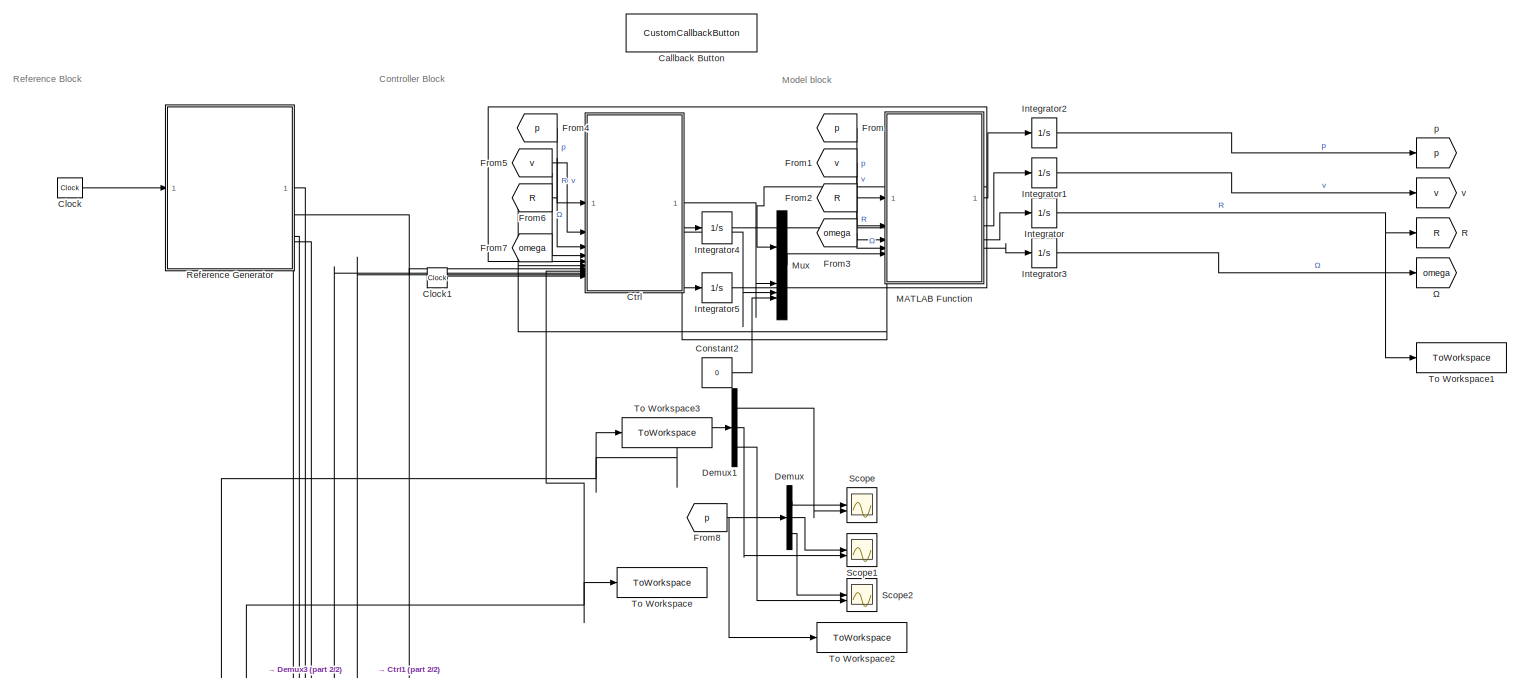
[diagram: root canvas - part 1/2, full width, top band]
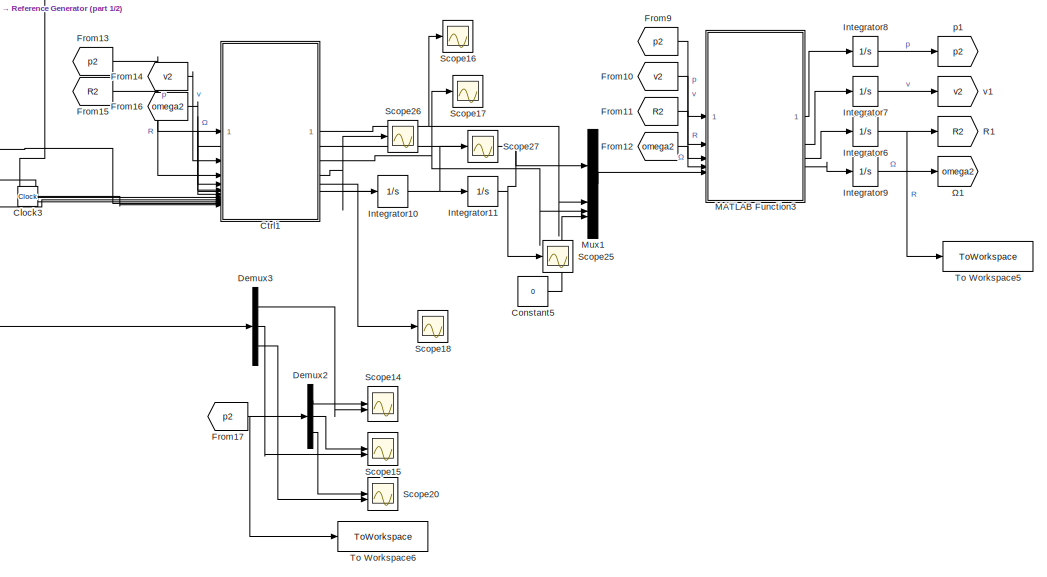
[diagram: root canvas - part 2/2, bottom center region]
MODEL slx_697af45009bc
KIND model
CONFIG AbsTol = auto
CONFIG EnableMultiTasking = on
CONFIG FixedStep = 0.001
CONFIG MaxStep = auto
CONFIG MinStep = auto
CONFIG RelTol = 1e-3
CONFIG SampleTimeConstraint = Unconstrained
CONFIG SolverName = VariableStepAuto
CONFIG StartTime = 0.0
CONFIG StopTime = 40
BLOCK [CustomCallbackButton] Callback Button
  Configuration = {"components":[{"name":"BackgroundImageComponent","settings":{"image":{"size":[0,0],"src":"default","srcOrientation":"Right"},"position":[0,0,1,1]}},{"name":"ButtonStateComponent","settings":{"buttonType":"momentary","clickFcn":"p0 = [10 0 0]';\nv0 = [-0.5 4.5 1]';\nR0 = eye(3);\n\nomega_0 = [0 0 0]';","onValue":1,"position":[0,0,1,1],"pressDelay":"500","pressFcn":"","repeatInterval":"0","states":...<+2132ch>
  CustomBackgroundColor = {"color":[0.9568627450980393,0.9568627450980393,0.9568627450980393],"show":true}
BLOCK [Clock] Clock
BLOCK [Clock] Clock1
BLOCK [Clock] Clock3
BLOCK [Constant] Constant2
  Value = 0
BLOCK [Constant] Constant5
  Value = 0
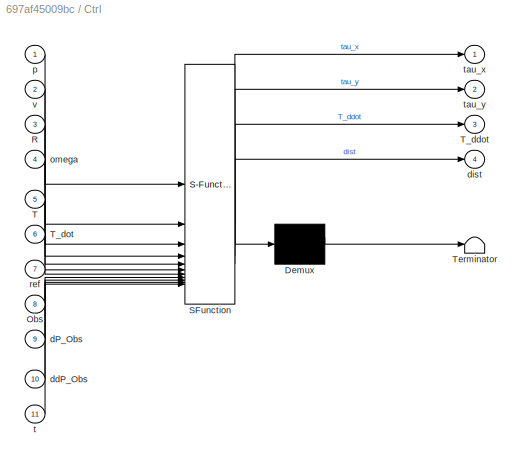
BLOCK [SubSystem] Ctrl
  ErrorFcn = Stateflow.Translate.translate
  PermitHierarchicalResolution = ExplicitOnly
  SFBlockType = MATLAB Function
  TreatAsAtomicUnit = on
BLOCK [Demux] Ctrl/ Demux 
  Outputs = 1
BLOCK [S-Function] Ctrl/ SFunction 
  EnableBusSupport = on
  FunctionName = sf_sfun
  PortCounts = [11 5]
  SFcnIsStateOwnerBlock = off
  SFunctionDeploymentMode = off
  Tag = Stateflow S-Function 3
BLOCK [Terminator] Ctrl/ Terminator 
BLOCK [Inport] Ctrl/Obs
  Port = 8
BLOCK [Inport] Ctrl/R
  Port = 3
BLOCK [Inport] Ctrl/T
  Port = 5
BLOCK [Outport] Ctrl/T_ddot
  Port = 3
BLOCK [Inport] Ctrl/T_dot
  Port = 6
BLOCK [Inport] Ctrl/dP_Obs
  Port = 9
BLOCK [Inport] Ctrl/ddP_Obs
  Port = 10
BLOCK [Outport] Ctrl/dist
  Port = 4
BLOCK [Inport] Ctrl/omega
  Port = 4
BLOCK [Inport] Ctrl/p
BLOCK [Inport] Ctrl/ref
  Port = 7
BLOCK [Inport] Ctrl/t
  Port = 11
BLOCK [Outport] Ctrl/tau_x
BLOCK [Outport] Ctrl/tau_y
  Port = 2
BLOCK [Inport] Ctrl/v
  Port = 2
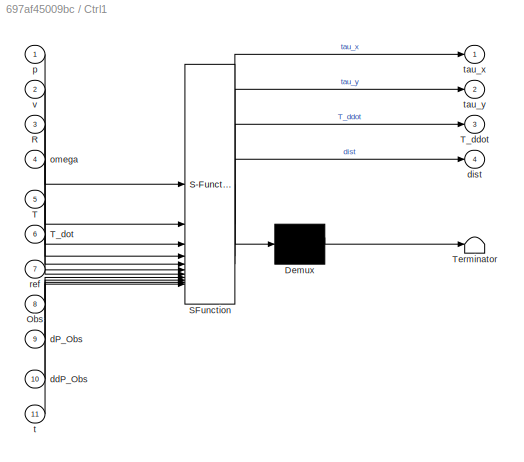
BLOCK [SubSystem] Ctrl1
  ErrorFcn = Stateflow.Translate.translate
  PermitHierarchicalResolution = ExplicitOnly
  SFBlockType = MATLAB Function
  TreatAsAtomicUnit = on
BLOCK [Demux] Ctrl1/ Demux 
  Outputs = 1
BLOCK [S-Function] Ctrl1/ SFunction 
  EnableBusSupport = on
  FunctionName = sf_sfun
  PortCounts = [11 5]
  SFcnIsStateOwnerBlock = off
  SFunctionDeploymentMode = off
  Tag = Stateflow S-Function 6
BLOCK [Terminator] Ctrl1/ Terminator 
BLOCK [Inport] Ctrl1/Obs
  Port = 8
BLOCK [Inport] Ctrl1/R
  Port = 3
BLOCK [Inport] Ctrl1/T
  Port = 5
BLOCK [Outport] Ctrl1/T_ddot
  Port = 3
BLOCK [Inport] Ctrl1/T_dot
  Port = 6
BLOCK [Inport] Ctrl1/dP_Obs
  Port = 9
BLOCK [Inport] Ctrl1/ddP_Obs
  Port = 10
BLOCK [Outport] Ctrl1/dist
  Port = 4
BLOCK [Inport] Ctrl1/omega
  Port = 4
BLOCK [Inport] Ctrl1/p
BLOCK [Inport] Ctrl1/ref
  Port = 7
BLOCK [Inport] Ctrl1/t
  Port = 11
BLOCK [Outport] Ctrl1/tau_x
BLOCK [Outport] Ctrl1/tau_y
  Port = 2
BLOCK [Inport] Ctrl1/v
  Port = 2
BLOCK [Demux] Demux
  Outputs = 3
BLOCK [Demux] Demux1
  Outputs = 3
BLOCK [Demux] Demux2
  Outputs = 3
BLOCK [Demux] Demux3
  Outputs = 3
BLOCK [From] From
  GotoTag = p
  TagVisibility = global
BLOCK [From] From1
  GotoTag = v
  TagVisibility = global
BLOCK [From] From10
  GotoTag = v2
  TagVisibility = global
BLOCK [From] From11
  GotoTag = R2
  TagVisibility = global
BLOCK [From] From12
  GotoTag = omega2
  IconDisplay = Signal name
  TagVisibility = global
BLOCK [From] From13
  GotoTag = p2
  TagVisibility = global
BLOCK [From] From14
  GotoTag = v2
  TagVisibility = global
BLOCK [From] From15
  GotoTag = R2
  TagVisibility = global
BLOCK [From] From16
  GotoTag = omega2
  IconDisplay = Signal name
  TagVisibility = global
BLOCK [From] From17
  GotoTag = p2
  TagVisibility = global
BLOCK [From] From2
  GotoTag = R
  TagVisibility = global
BLOCK [From] From3
  GotoTag = omega
  IconDisplay = Signal name
  TagVisibility = global
BLOCK [From] From4
  GotoTag = p
  TagVisibility = global
BLOCK [From] From5
  GotoTag = v
  TagVisibility = global
BLOCK [From] From6
  GotoTag = R
  TagVisibility = global
BLOCK [From] From7
  GotoTag = omega
  IconDisplay = Signal name
  TagVisibility = global
BLOCK [From] From8
  GotoTag = p
  TagVisibility = global
BLOCK [From] From9
  GotoTag = p2
  TagVisibility = global
BLOCK [Integrator] Integrator
  InitialCondition = R0
BLOCK [Integrator] Integrator1
  InitialCondition = v0
BLOCK [Integrator] Integrator10
  LowerSaturationLimit = -10^6
  UpperSaturationLimit = 0
BLOCK [Integrator] Integrator11
  InitialCondition = 9.81
  LowerSaturationLimit = -1000
  UpperSaturationLimit = 1000
BLOCK [Integrator] Integrator2
  InitialCondition = p0
BLOCK [Integrator] Integrator3
  InitialCondition = omega_0
BLOCK [Integrator] Integrator4
  LowerSaturationLimit = -10^6
  UpperSaturationLimit = 0
BLOCK [Integrator] Integrator5
  InitialCondition = 9.81
  LowerSaturationLimit = -1000
  UpperSaturationLimit = 1000
BLOCK [Integrator] Integrator6
  InitialCondition = R0
BLOCK [Integrator] Integrator7
  InitialCondition = v0
BLOCK [Integrator] Integrator8
  InitialCondition = p0
BLOCK [Integrator] Integrator9
  InitialCondition = omega_0
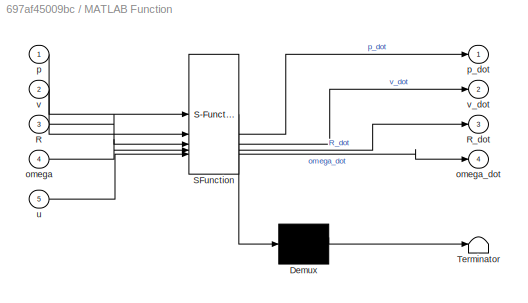
BLOCK [SubSystem] MATLAB Function
  ErrorFcn = Stateflow.Translate.translate
  PermitHierarchicalResolution = ExplicitOnly
  SFBlockType = MATLAB Function
  TreatAsAtomicUnit = on
BLOCK [Demux] MATLAB Function/ Demux 
  Outputs = 1
BLOCK [S-Function] MATLAB Function/ SFunction 
  EnableBusSupport = on
  FunctionName = sf_sfun
  PortCounts = [5 5]
  SFcnIsStateOwnerBlock = off
  SFunctionDeploymentMode = off
  Tag = Stateflow S-Function 2
BLOCK [Terminator] MATLAB Function/ Terminator 
BLOCK [Inport] MATLAB Function/R
  Port = 3
BLOCK [Outport] MATLAB Function/R_dot
  Port = 3
BLOCK [Inport] MATLAB Function/omega
  Port = 4
BLOCK [Outport] MATLAB Function/omega_dot
  Port = 4
BLOCK [Inport] MATLAB Function/p
BLOCK [Outport] MATLAB Function/p_dot
BLOCK [Inport] MATLAB Function/u
  Port = 5
BLOCK [Inport] MATLAB Function/v
  Port = 2
BLOCK [Outport] MATLAB Function/v_dot
  Port = 2
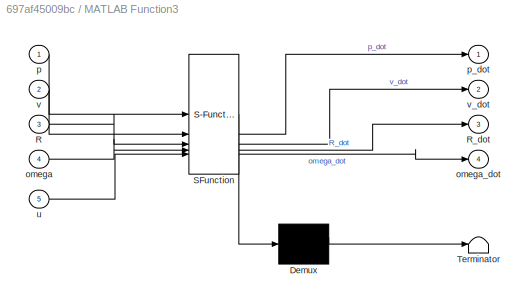
BLOCK [SubSystem] MATLAB Function3
  ErrorFcn = Stateflow.Translate.translate
  PermitHierarchicalResolution = ExplicitOnly
  SFBlockType = MATLAB Function
  TreatAsAtomicUnit = on
BLOCK [Demux] MATLAB Function3/ Demux 
  Outputs = 1
BLOCK [S-Function] MATLAB Function3/ SFunction 
  EnableBusSupport = on
  FunctionName = sf_sfun
  PortCounts = [5 5]
  SFcnIsStateOwnerBlock = off
  SFunctionDeploymentMode = off
  Tag = Stateflow S-Function 7
BLOCK [Terminator] MATLAB Function3/ Terminator 
BLOCK [Inport] MATLAB Function3/R
  Port = 3
BLOCK [Outport] MATLAB Function3/R_dot
  Port = 3
BLOCK [Inport] MATLAB Function3/omega
  Port = 4
BLOCK [Outport] MATLAB Function3/omega_dot
  Port = 4
BLOCK [Inport] MATLAB Function3/p
BLOCK [Outport] MATLAB Function3/p_dot
BLOCK [Inport] MATLAB Function3/u
  Port = 5
BLOCK [Inport] MATLAB Function3/v
  Port = 2
BLOCK [Outport] MATLAB Function3/v_dot
  Port = 2
BLOCK [Mux] Mux
  DisplayOption = bar
BLOCK [Mux] Mux1
  DisplayOption = bar
BLOCK [Goto] R
  GotoTag = R
  NameLocation = right
  TagVisibility = global
BLOCK [Goto] R1
  GotoTag = R2
  NameLocation = right
  TagVisibility = global
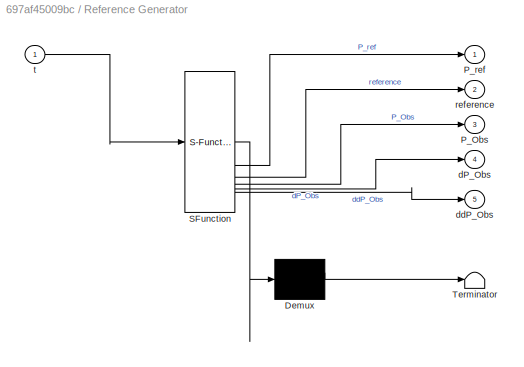
BLOCK [SubSystem] Reference Generator
  ErrorFcn = Stateflow.Translate.translate
  PermitHierarchicalResolution = ExplicitOnly
  SFBlockType = MATLAB Function
  TreatAsAtomicUnit = on
BLOCK [Demux] Reference Generator/ Demux 
  Outputs = 1
BLOCK [S-Function] Reference Generator/ SFunction 
  EnableBusSupport = on
  FunctionName = sf_sfun
  PortCounts = [1 6]
  SFcnIsStateOwnerBlock = off
  SFunctionDeploymentMode = off
  Tag = Stateflow S-Function 5
BLOCK [Terminator] Reference Generator/ Terminator 
BLOCK [Outport] Reference Generator/P_Obs
  Port = 3
BLOCK [Outport] Reference Generator/P_ref
BLOCK [Outport] Reference Generator/dP_Obs
  Port = 4
BLOCK [Outport] Reference Generator/ddP_Obs
  Port = 5
BLOCK [Outport] Reference Generator/reference
  Port = 2
BLOCK [Inport] Reference Generator/t
BLOCK [Scope] Scope
  Floating = off
  NumInputPorts = 2
  ScopeSpecificationString = Simulink.scopes.TimeScopeBlockCfg('CurrentConfiguration', extmgr.ConfigurationSet(extmgr.Configuration('Core','General UI',true),extmgr.Configuration('Core','Source UI',true),extmgr.Configuration('Sources','WiredSimulink',true),extmgr.Configuration('Visuals','Time Domain',true,'SerializedDisplays',{struct('MinYLimReal','-14.68395','MaxYLimReal','20.03251','YLabelReal','','MinYLimMag','0.00000','Ma...<+1479ch>
BLOCK [Scope] Scope1
  Floating = off
  NumInputPorts = 2
  ScopeSpecificationString = Simulink.scopes.TimeScopeBlockCfg('CurrentConfiguration', extmgr.ConfigurationSet(extmgr.Configuration('Core','General UI',true),extmgr.Configuration('Core','Source UI',true),extmgr.Configuration('Sources','WiredSimulink',true,'DataLoggingVariableName','ScopeData1'),extmgr.Configuration('Visuals','Time Domain',true,'SerializedDisplays',{struct('MinYLimReal','-12.71877','MaxYLimReal','14.4718','YLa...<+1541ch>
BLOCK [Scope] Scope14
  Floating = off
  NumInputPorts = 2
  ScopeSpecificationString = Simulink.scopes.TimeScopeBlockCfg('CurrentConfiguration', extmgr.ConfigurationSet(extmgr.Configuration('Core','General UI',true),extmgr.Configuration('Core','Source UI',true),extmgr.Configuration('Sources','WiredSimulink',true,'DataLoggingVariableName','ScopeData2'),extmgr.Configuration('Visuals','Time Domain',true,'SerializedDisplays',{struct('MinYLimReal','-14.68395','MaxYLimReal','20.03251','YL...<+1519ch>
BLOCK [Scope] Scope15
  Floating = off
  NumInputPorts = 2
  ScopeSpecificationString = Simulink.scopes.TimeScopeBlockCfg('CurrentConfiguration', extmgr.ConfigurationSet(extmgr.Configuration('Core','General UI',true),extmgr.Configuration('Core','Source UI',true),extmgr.Configuration('Sources','WiredSimulink',true,'DataLoggingVariableName','ScopeData3'),extmgr.Configuration('Visuals','Time Domain',true,'SerializedDisplays',{struct('MinYLimReal','-12.71877','MaxYLimReal','14.4718','YLa...<+1542ch>
BLOCK [Scope] Scope16
  Floating = off
  NumInputPorts = 1
  ScopeSpecificationString = Simulink.scopes.TimeScopeBlockCfg('CurrentConfiguration', extmgr.ConfigurationSet(extmgr.Configuration('Core','General UI',true),extmgr.Configuration('Core','Source UI',true),extmgr.Configuration('Sources','WiredSimulink',true,'DataLoggingVariableName','ScopeData4'),extmgr.Configuration('Visuals','Time Domain',true,'SerializedDisplays',{struct('MinYLimReal','-0.97119','MaxYLimReal','0.66096','YLab...<+1504ch>
BLOCK [Scope] Scope17
  Floating = off
  NumInputPorts = 1
  ScopeSpecificationString = Simulink.scopes.TimeScopeBlockCfg('CurrentConfiguration', extmgr.ConfigurationSet(extmgr.Configuration('Core','General UI',true),extmgr.Configuration('Core','Source UI',true),extmgr.Configuration('Sources','WiredSimulink',true,'DataLoggingVariableName','ScopeData5'),extmgr.Configuration('Visuals','Time Domain',true,'SerializedDisplays',{struct('MinYLimReal','-1.02087','MaxYLimReal','0.48265','YLab...<+1502ch>
BLOCK [Scope] Scope18
  Floating = off
  NumInputPorts = 1
  ScopeSpecificationString = Simulink.scopes.TimeScopeBlockCfg('CurrentConfiguration', extmgr.ConfigurationSet(extmgr.Configuration('Core','General UI',true),extmgr.Configuration('Core','Source UI',true),extmgr.Configuration('Sources','WiredSimulink',true,'DataLoggingVariableName','ScopeData6'),extmgr.Configuration('Visuals','Time Domain',true,'SerializedDisplays',{struct('MinYLimReal','34.16573','MaxYLimReal','37.03978','YLa...<+1482ch>
BLOCK [Scope] Scope2
  Floating = off
  NumInputPorts = 2
  ScopeSpecificationString = Simulink.scopes.TimeScopeBlockCfg('CurrentConfiguration', extmgr.ConfigurationSet(extmgr.Configuration('Core','General UI',true),extmgr.Configuration('Core','Source UI',true),extmgr.Configuration('Sources','WiredSimulink',true,'DataLoggingVariableName','ScopeData2'),extmgr.Configuration('Visuals','Time Domain',true,'SerializedDisplays',{struct('MinYLimReal','-5.06384','MaxYLimReal','14.06358','YLa...<+1543ch>
BLOCK [Scope] Scope20
  Floating = off
  NumInputPorts = 2
  ScopeSpecificationString = Simulink.scopes.TimeScopeBlockCfg('CurrentConfiguration', extmgr.ConfigurationSet(extmgr.Configuration('Core','General UI',true),extmgr.Configuration('Core','Source UI',true),extmgr.Configuration('Sources','WiredSimulink',true,'DataLoggingVariableName','ScopeData8'),extmgr.Configuration('Visuals','Time Domain',true,'SerializedDisplays',{struct('MinYLimReal','-7.71246','MaxYLimReal','4.37252','YLab...<+1540ch>
BLOCK [Scope] Scope25
  Floating = off
  NumInputPorts = 1
  ScopeSpecificationString = Simulink.scopes.TimeScopeBlockCfg('CurrentConfiguration', extmgr.ConfigurationSet(extmgr.Configuration('Core','General UI',true),extmgr.Configuration('Core','Source UI',true),extmgr.Configuration('Sources','WiredSimulink',true,'DataLoggingVariableName','ScopeData13'),extmgr.Configuration('Visuals','Time Domain',true,'SerializedDisplays',{struct('MinYLimReal','9.46273','MaxYLimReal','12.00036','YLa...<+1506ch>
BLOCK [Scope] Scope26
  Floating = off
  NumInputPorts = 1
  ScopeSpecificationString = Simulink.scopes.TimeScopeBlockCfg('CurrentConfiguration', extmgr.ConfigurationSet(extmgr.Configuration('Core','General UI',true),extmgr.Configuration('Core','Source UI',true),extmgr.Configuration('Sources','WiredSimulink',true,'DataLoggingVariableName','ScopeData14'),extmgr.Configuration('Visuals','Time Domain',true,'SerializedDisplays',{struct('MinYLimReal','-63.24381','MaxYLimReal','52.93196','Y...<+1485ch>
BLOCK [Scope] Scope27
  Floating = off
  NumInputPorts = 1
  ScopeSpecificationString = Simulink.scopes.TimeScopeBlockCfg('CurrentConfiguration', extmgr.ConfigurationSet(extmgr.Configuration('Core','General UI',true),extmgr.Configuration('Core','Source UI',true),extmgr.Configuration('Sources','WiredSimulink',true,'DataLoggingVariableName','ScopeData15'),extmgr.Configuration('Visuals','Time Domain',true,'SerializedDisplays',{struct('MinYLimReal','-6.34101','MaxYLimReal','6.35909','YLa...<+1460ch>
BLOCK [ToWorkspace] To Workspace
  FixptAsFi = on
  MaxDataPoints = inf
  SampleTime = 0.1
  SaveFormat = Structure With Time
  VariableName = Obstacles
BLOCK [ToWorkspace] To Workspace1
  FixptAsFi = on
  MaxDataPoints = inf
  SampleTime = 0.1
  SaveFormat = Structure With Time
  VariableName = Attitude
BLOCK [ToWorkspace] To Workspace2
  FixptAsFi = on
  MaxDataPoints = inf
  SampleTime = 0.1
  SaveFormat = Structure With Time
  VariableName = Position
BLOCK [ToWorkspace] To Workspace3
  FixptAsFi = on
  MaxDataPoints = inf
  SampleTime = 0.1
  SaveFormat = Structure With Time
  VariableName = Reference
BLOCK [ToWorkspace] To Workspace5
  FixptAsFi = on
  MaxDataPoints = inf
  SampleTime = 0.1
  SaveFormat = Structure With Time
  VariableName = Attitude2
BLOCK [ToWorkspace] To Workspace6
  FixptAsFi = on
  MaxDataPoints = inf
  SampleTime = 0.1
  SaveFormat = Structure With Time
  VariableName = Position2
BLOCK [Goto] p
  GotoTag = p
  NameLocation = right
  TagVisibility = global
BLOCK [Goto] p1
  GotoTag = p2
  NameLocation = right
  TagVisibility = global
BLOCK [Goto] v
  GotoTag = v
  NameLocation = right
  TagVisibility = global
BLOCK [Goto] v1
  GotoTag = v2
  NameLocation = right
  TagVisibility = global
BLOCK [Goto] Ω
  GotoTag = omega
  IconDisplay = Signal name
  NameLocation = right
  TagVisibility = global
BLOCK [Goto] Ω1
  GotoTag = omega2
  IconDisplay = Signal name
  NameLocation = right
  TagVisibility = global
ANNOTATION (root): Controller Block
ANNOTATION (root): Model block
ANNOTATION (root): Reference Block
LINE Clock1:1 -> Ctrl:11
LINE Clock3:1 -> Ctrl1:11
LINE Clock:1 -> Reference Generator:1
LINE Constant2:1 -> Mux:4
LINE Constant5:1 -> Mux1:4
NET Ctrl1:1 -> Mux1:2, Scope16:1
NET Ctrl1:2 -> Mux1:3, Scope17:1
NET Ctrl1:3 -> Integrator10:1, Scope26:1
LINE Ctrl1:4 -> Scope18:1
LINE Ctrl:1 -> Mux:2
LINE Ctrl:2 -> Mux:3
LINE Ctrl:3 -> Integrator4:1
LINE Demux1:1 -> Scope:2
LINE Demux1:2 -> Scope1:2
LINE Demux1:3 -> Scope2:2
LINE Demux2:1 -> Scope14:1
LINE Demux2:2 -> Scope15:1
LINE Demux2:3 -> Scope20:1
LINE Demux3:1 -> Scope14:2
LINE Demux3:2 -> Scope15:2
LINE Demux3:3 -> Scope20:2
LINE Demux:1 -> Scope:1
LINE Demux:2 -> Scope1:1
LINE Demux:3 -> Scope2:1
LINE From10:1 -> MATLAB Function3:2
LINE From11:1 -> MATLAB Function3:3
LINE From12:1 -> MATLAB Function3:4
LINE From13:1 -> Ctrl1:1
LINE From14:1 -> Ctrl1:2
LINE From15:1 -> Ctrl1:3
LINE From16:1 -> Ctrl1:4
NET From17:1 -> Demux2:1, To Workspace6:1
LINE From1:1 -> MATLAB Function:2
LINE From2:1 -> MATLAB Function:3
LINE From3:1 -> MATLAB Function:4
LINE From4:1 -> Ctrl:1
LINE From5:1 -> Ctrl:2
LINE From6:1 -> Ctrl:3
LINE From7:1 -> Ctrl:4
NET From8:1 -> Demux:1, To Workspace2:1
LINE From9:1 -> MATLAB Function3:1
LINE From:1 -> MATLAB Function:1
NET Integrator10:1 -> Ctrl1:6, Integrator11:1, Scope27:1
NET Integrator11:1 -> Ctrl1:5, Mux1:1, Scope25:1
LINE Integrator1:1 -> v:1
LINE Integrator2:1 -> p:1
LINE Integrator3:1 -> Ω:1
NET Integrator4:1 -> Ctrl:6, Integrator5:1
NET Integrator5:1 -> Ctrl:5, Mux:1
NET Integrator6:1 -> R1:1, To Workspace5:1
LINE Integrator7:1 -> v1:1
LINE Integrator8:1 -> p1:1
LINE Integrator9:1 -> Ω1:1
NET Integrator:1 -> R:1, To Workspace1:1
LINE MATLAB Function3:1 -> Integrator8:1
LINE MATLAB Function3:2 -> Integrator7:1
LINE MATLAB Function3:3 -> Integrator6:1
LINE MATLAB Function3:4 -> Integrator9:1
LINE MATLAB Function:1 -> Integrator2:1
LINE MATLAB Function:2 -> Integrator1:1
LINE MATLAB Function:3 -> Integrator:1
LINE MATLAB Function:4 -> Integrator3:1
LINE Mux1:1 -> MATLAB Function3:5
LINE Mux:1 -> MATLAB Function:5
NET Reference Generator:1 -> Demux1:1, Demux3:1, To Workspace3:1
NET Reference Generator:2 -> Ctrl1:7, Ctrl:7
NET Reference Generator:3 -> Ctrl1:8, Ctrl:8, To Workspace:1
NET Reference Generator:4 -> Ctrl1:9, Ctrl:9
NET Reference Generator:5 -> Ctrl1:10, Ctrl:10
note: NET lines group one-source signal fan-out (src -> all destinations, sorted); 1:1 wires keep LINE
CHART MATLAB Function states=1 transitions=1
  STATE_LABEL 'eML_blk_kernel()'
  STATE_LABEL "SCRIPT:\nfunction [p_dot, v_dot, R_dot, omega_dot]= drone(p,v,R,omega, u)\n\n% States\nwx = omega(1);\nwy = omega(2);\nwz = omega(3);\n\n% Inputs\nT = u(1);\nTau = u(2:4);\n\n% Parameters\nIx = 0.082;\nIy = 0.0845;\nIz = 0.1377;\nJ = diag([Ix Iy Iz]);\n%J = eye(3)*0.01;%diag([Ix Iy Iz]);\ng = 9.81;\nm = 1;\n\n\ne3 = [0 0 1]';\nS = [0 -wz wy; wz 0 -wx; -wy wx 0];\n\n% Gyroscopic effects\nwx_gyro = 0;\nwy_gyro = 0;\n\nw_gyro = ...<+142ch>"
CHART Ctrl states=1 transitions=1
  STATE_LABEL 'eML_blk_kernel()'
  STATE_LABEL "SCRIPT:\nfunction [tau_x, tau_y, T_ddot, dist] = control(p,v,R,omega,T , T_dot, ref, Obs, dP_Obs, ddP_Obs, t)\n\nM = diag([1/0.5^2 1/0.5^2 1/0.25^2]);\nmu =0.5;\nmu2 = 0.01;\ndelta = 20;\n%muro\n%delta =20\n%mu = 0.8;\n%mu2 = 0.007;\n% States\nwx = omega(1);\nwy = omega(2);\nwz = omega(3);\n\n% Parameters\nIx = 0.082;\nIy = 0.0845;\nIz = 0.1377;\nJ = diag([Ix Iy Iz]);\ng = 9.81;\nm = 1;\n\n\ne3 = [0 0 1]';\nS = [0 -wz wy; ...<+1371ch>"
CHART Reference Generator states=1 transitions=1
  STATE_LABEL 'eML_blk_kernel()'
  STATE_LABEL 'SCRIPT:\nfunction [P_ref, reference, P_Obs, dP_Obs, ddP_Obs] = fcn(t)\nw = 0.5;\nx_ref= 10*cos(w*t);\ny_ref= 10*sin(w*t);\nz_ref= 1*t;\n\n\nvx_ref= -w*10*sin(w*t);\nvy_ref= w*10*cos(w*t);\nvz_ref= 1;\n\nax_ref= -w^2*x_ref;\nay_ref= -w^2*y_ref;\naz_ref= 0;\n\njx_ref= w^3*10*sin(w*t);\njy_ref= -w^3*10*cos(w*t);\njz_ref= 0;\n\ndjx_ref= w^4*10*cos(w*t);\ndjy_ref= w^4*10*sin(w*t);\ndjz_ref= 0;\n\n%retta\n% x_ref= 1*t;\n% y_ref=...<+1019ch>'
CHART Ctrl1 states=1 transitions=1
  STATE_LABEL 'eML_blk_kernel()'
  STATE_LABEL "SCRIPT:\nfunction [tau_x, tau_y, T_ddot, dist] = control(p,v,R,omega,T , T_dot, ref, Obs, dP_Obs, ddP_Obs, t)\n\n\nmu =0.5;\nmu2 = 0.01;\ndelta = 20;\n%muro\n% mu = 0.8;\n% mu2 = 0.007;\n% delta =5 ;\n% States\nwx = omega(1);\nwy = omega(2);\nwz = omega(3);\n\n% Parameters\nIx = 0.082;\nIy = 0.0845;\nIz = 0.1377;\nJ = diag([Ix Iy Iz]);\ng = 9.81;\nm = 1;\n\n\ne3 = [0 0 1]';\nS = [0 -wz wy; wz 0 -wx; -wy wx 0];\n\n%% Linear P...<+1105ch>"
CHART MATLAB Function3 states=1 transitions=1
  STATE_LABEL 'eML_blk_kernel()'
  STATE_LABEL "SCRIPT:\nfunction [p_dot, v_dot, R_dot, omega_dot]= drone(p,v,R,omega, u)\n\n% States\nwx = omega(1);\nwy = omega(2);\nwz = omega(3);\n\n% Inputs\nT = u(1);\nTau = u(2:4);\n\n% Parameters\nIx = 0.082;\nIy = 0.0845;\nIz = 0.1377;\nJ = diag([Ix Iy Iz]);\n%J = eye(3)*0.01;%diag([Ix Iy Iz]);\ng = 9.81;\nm = 1;\n\n\ne3 = [0 0 1]';\nS = [0 -wz wy; wz 0 -wx; -wy wx 0];\n\n% Gyroscopic effects\nwx_gyro = 0;\nwy_gyro = 0;\n\nw_gyro = ...<+142ch>"
CHART  states=0 transitions=0
CHART  states=0 transitions=0
CHART  states=0 transitions=0
CHART  states=0 transitions=0
CHART  states=0 transitions=0
